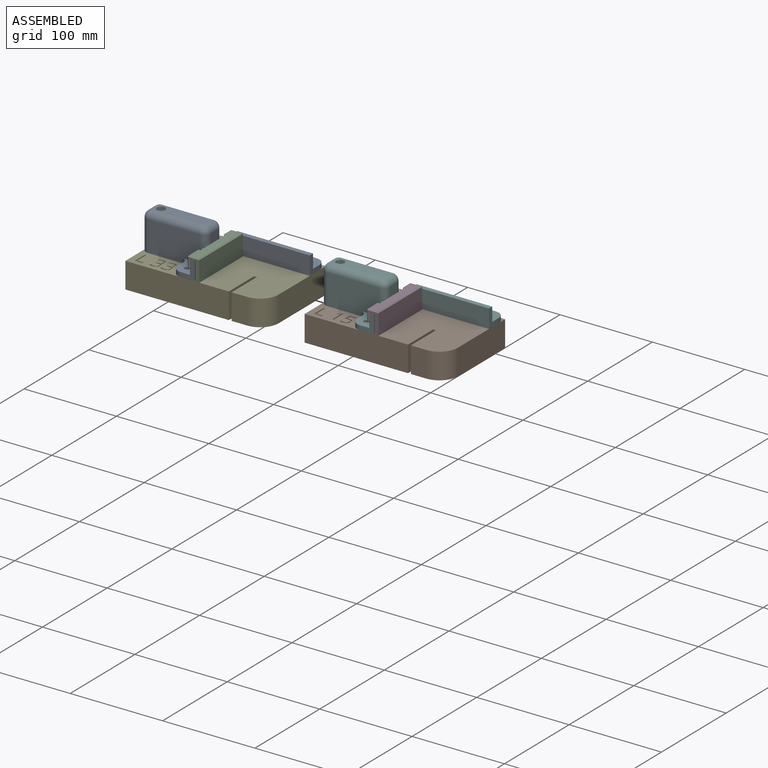
[diagram: assembled view]
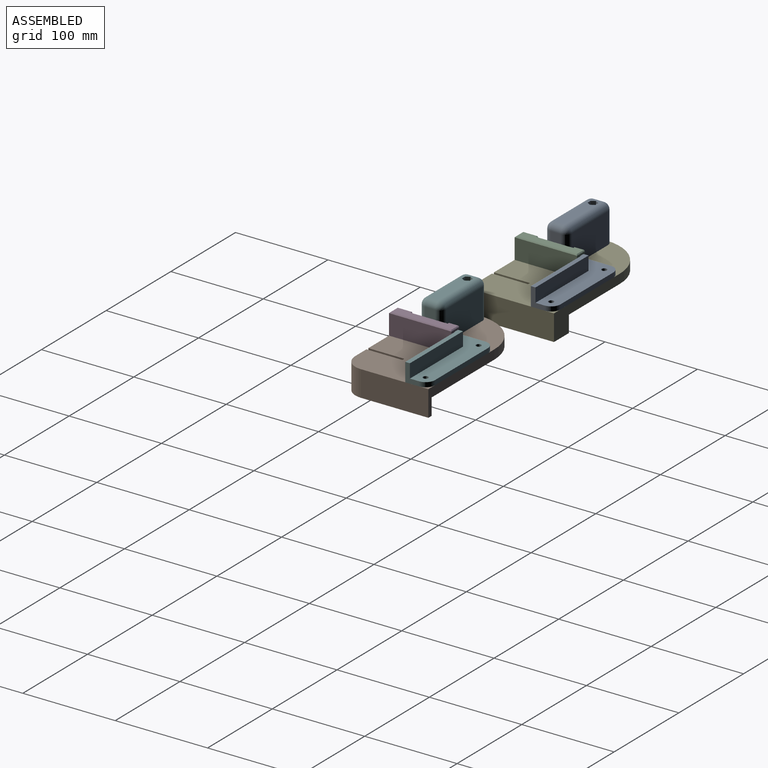
[diagram: assembled view, second angle]
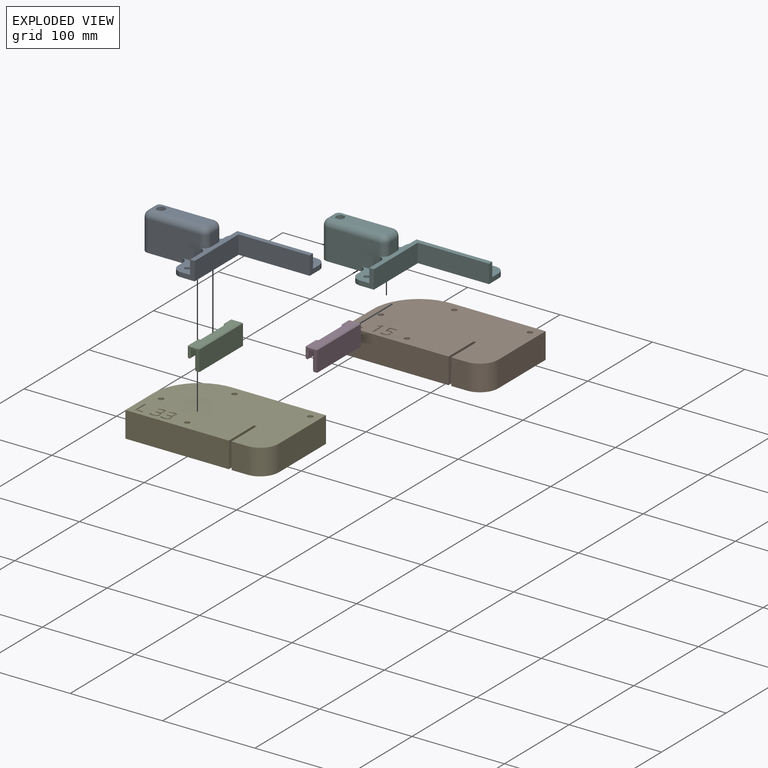
[diagram: exploded view]
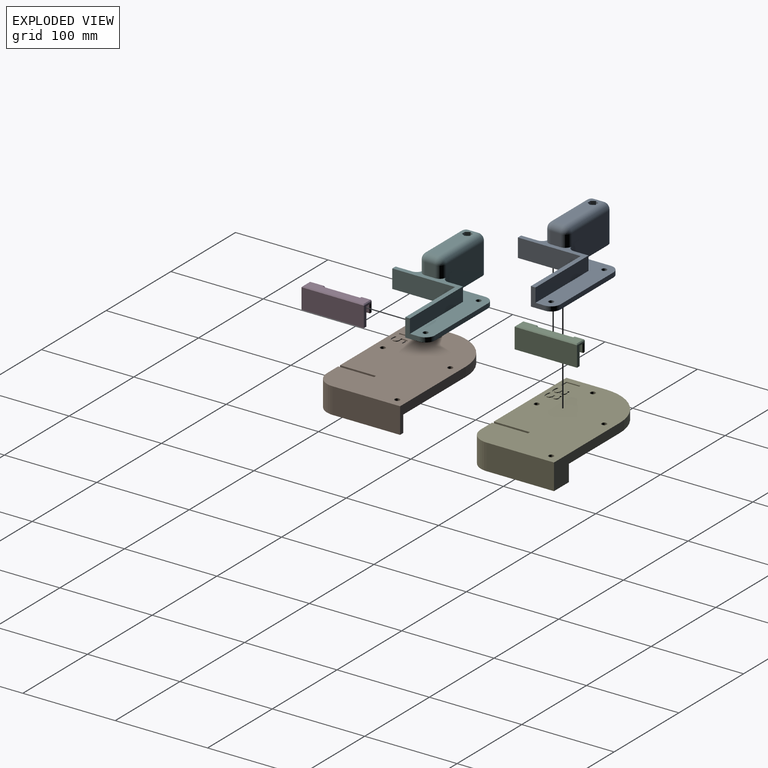
[diagram: exploded view, second angle]
ASSEMBLY  parts=6 mates=4
PART A: 49 faces, bbox 152x93x40 mm
  f0: plane 56x11mm, normal (0,0,-1), area 556.3mm2, adj f31,f33,f34,f35,f39,f40,f41,f42
  f1: plane 16x15mm, normal (1,0,0), area 240mm2, adj f2,f8,f21,f28
  f2: plane 82x15mm, normal (0,1,0), area 1230mm2, adj f1,f4,f8,f21
  f3: plane 18x15mm, normal (1,0,0), area 270mm2, adj f7,f8,f25,f29
  f4: plane 20x15mm, normal (-1,0,0), area 150mm2, adj f2,f5,f8,f9,f18,f21
  f5: plane 77x20mm, normal (0,-1,0), area 1540mm2, adj f4,f6,f8,f9
  f6: plane 68x20mm, normal (-1,0,0), area 1360mm2, adj f5,f7,f8,f9
  f7: plane 20x15mm, normal (0,-1,0), area 150mm2, adj f3,f6,f8,f9,f22,f25
  f8: plane 89x73mm, normal (0,0,-1), area 792.1mm2, adj f1,f2,f3,f4,f5,f6,f7,f10
  f9: plane 152x93mm, normal (0,0,1), area 5340.6mm2, adj f4,f5,f6,f7,f11,f12,f13,f14
  f10: plane 13x11mm, normal (-1,0,0), area 143mm2, adj f8,f33,f45,f47
  f11: plane 56x33mm, normal (0,1,0), area 1748mm2, adj f9,f21,f27,f28,f30,f31,f45
  f12: plane 56x33mm, normal (0,-1,0), area 1748mm2, adj f9,f25,f26,f29,f35,f37,f47
  f13: plane 33x11mm, normal (1,0,0), area 363mm2, adj f9,f30,f34,f37
  f14: cylinder r=2.75mm len=35mm, axis (0,0,1), area 604.8mm2, adj f9,f38
  f15: plane 26x5mm, normal (1,0,0), area 130mm2, adj f9,f16,f21,f27
  f16: cylinder r=10mm len=10mm, axis (0,0,1), area 78.5mm2, adj f9,f15,f17,f21
  f17: plane 82x5mm, normal (0,1,0), area 410mm2, adj f9,f16,f18,f21
  f18: cylinder r=10mm len=10mm, axis (0,0,1), area 78.5mm2, adj f4,f9,f17,f21
  f19: cylinder r=2.75mm len=5.5mm, axis (0,0,1), area 86.4mm2, adj f9,f21
  f20: cylinder r=2.75mm len=5.5mm, axis (0,0,1), area 86.4mm2, adj f9,f21
  f21: plane 109x43mm, normal (0,0,-1), area 2409.6mm2, adj f1,f2,f4,f11,f15,f16,f17,f18
  f22: cylinder r=10mm len=10mm, axis (0,0,1), area 78.5mm2, adj f7,f9,f23,f25
  f23: plane 8x5mm, normal (1,0,0), area 40mm2, adj f9,f22,f25,f26
  f24: cylinder r=2.75mm len=5.5mm, axis (0,0,1), area 86.4mm2, adj f9,f25
  f25: plane 27x25mm, normal (0,0,-1), area 454.8mm2, adj f3,f7,f12,f22,f23,f24,f26,f29
  f26: cylinder r=7mm len=7mm, axis (0,0,1), area 55mm2, adj f9,f12,f23,f25
  f27: cylinder r=7mm len=7mm, axis (0,0,-1), area 55mm2, adj f9,f11,f15,f21
  f28: cylinder r=7mm len=15mm, axis (0,0,-1), area 164.9mm2, adj f1,f8,f11,f21
  f29: cylinder r=7mm len=15mm, axis (0,0,1), area 164.9mm2, adj f3,f8,f12,f25
  f30: cylinder r=7mm len=33mm, axis (0,0,-1), area 362.9mm2, adj f9,f11,f13,f32
  f31: cylinder r=7mm len=56mm, axis (1,0,0), area 615.8mm2, adj f0,f11,f32,f46
  f32: sphere r=7mm, area 77mm2, adj f30,f31,f34
  f33: cylinder r=7mm len=11mm, axis (0,1,0), area 121mm2, adj f0,f10,f46,f48
  f34: cylinder r=7mm len=11mm, axis (0,-1,0), area 121mm2, adj f0,f13,f32,f36
  f35: cylinder r=7mm len=56mm, axis (-1,0,0), area 615.8mm2, adj f0,f12,f36,f48
  f36: sphere r=7mm, area 77mm2, adj f34,f35,f37
  f37: cylinder r=7mm len=33mm, axis (0,0,1), area 362.9mm2, adj f9,f12,f13,f36
  f38: plane 9.58x8.3mm, normal (0,0,-1), area 35.9mm2, adj f14,f39,f40,f41,f42,f43,f44
  f39: plane 5x4.79mm, normal (0,-1,0), area 24mm2, adj f0,f38,f40,f44
  f40: plane 5x4.15mm, normal (0.87,-0.5,0), area 24mm2, adj f0,f38,f39,f41
  f41: plane 5x4.15mm, normal (0.87,0.5,0), area 24mm2, adj f0,f38,f40,f42
  f42: plane 5x4.79mm, normal (0,1,0), area 24mm2, adj f0,f38,f41,f43
  f43: plane 5x4.15mm, normal (-0.87,0.5,0), area 24mm2, adj f0,f38,f42,f44
  f44: plane 5x4.15mm, normal (-0.87,-0.5,0), area 24mm2, adj f0,f38,f39,f43
  f45: cylinder r=7mm len=13mm, axis (0,0,-1), area 142.9mm2, adj f8,f10,f11,f46
  f46: sphere r=7mm, area 77mm2, adj f31,f33,f45
  f47: cylinder r=7mm len=13mm, axis (0,0,1), area 142.9mm2, adj f8,f10,f12,f48
  f48: sphere r=7mm, area 77mm2, adj f33,f35,f47
PART B: 66 faces, bbox 152x93x28 mm
  f0: plane 152x93mm, normal (0,0,-1), area 13184mm2, adj f1,f2,f3,f4,f5,f6,f10,f11
  f1: plane 102x28mm, normal (0,1,0), area 1110mm2, adj f0,f6,f7,f8,f10,f12
  f2: plane 39x28mm, normal (1,0,0), area 804mm2, adj f0,f3,f7,f9,f11,f12
  f3: plane 10x3mm, normal (0,-1,0), area 30mm2, adj f0,f2,f4,f7
  f4: plane 39x28mm, normal (-1,0,0), area 804mm2, adj f0,f3,f7,f13,f14,f15
  f5: plane 43x28mm, normal (1,0,0), area 844mm2, adj f0,f6,f7,f13,f14,f15
  f6: cylinder r=50mm len=50mm, axis (0,0,-1), area 785.4mm2, adj f0,f1,f5,f7
  f7: plane 147x70mm, normal (0,0,1), area 9469.9mm2, adj f1,f2,f3,f4,f5,f6,f8,f9
  f8: plane 70x18mm, normal (1,0,0), area 1260mm2, adj f1,f7,f9,f12
  f9: plane 32x18mm, normal (0,1,0), area 576mm2, adj f2,f7,f8,f12
  f10: plane 73x28mm, normal (-1,0,0), area 2044mm2, adj f0,f1,f12,f65
  f11: plane 28x17mm, normal (0,-1,0), area 476mm2, adj f0,f2,f12,f65
  f12: plane 93x37mm, normal (0,0,1), area 1115.2mm2, adj f1,f2,f8,f9,f10,f11,f65
  f13: plane 112x18mm, normal (0,1,0), area 2016mm2, adj f4,f5,f7,f15
  f14: plane 112x28mm, normal (0,-1,0), area 3136mm2, adj f0,f4,f5,f15
  f15: plane 112x23mm, normal (0,0,1), area 2497.5mm2, adj f4,f5,f13,f14,f26
  f16: cylinder r=2.75mm len=5.5mm, axis (0,0,-1), area 86.4mm2, adj f0,f27
  f17: cylinder r=2.75mm len=5.5mm, axis (0,0,-1), area 86.4mm2, adj f0,f25
  f18: cylinder r=2.75mm len=5.5mm, axis (0,0,-1), area 86.4mm2, adj f0,f23
  f19: cylinder r=2.75mm len=5.5mm, axis (0,0,-1), area 86.4mm2, adj f0,f21
  f20: cylinder r=5mm len=10mm, axis (0,0,1), area 157.1mm2, adj f7,f21
  f21: plane 10x10mm, normal (0,0,1), area 54.8mm2, adj f19,f20
  f22: cylinder r=5mm len=10mm, axis (0,0,1), area 157.1mm2, adj f7,f23
  f23: plane 10x10mm, normal (0,0,1), area 54.8mm2, adj f18,f22
  f24: cylinder r=5mm len=10mm, axis (0,0,1), area 157.1mm2, adj f7,f25
  f25: plane 10x10mm, normal (0,0,1), area 54.8mm2, adj f17,f24
  f26: cylinder r=5mm len=23mm, axis (0,0,1), area 722.6mm2, adj f15,f27
  f27: plane 10x10mm, normal (0,0,1), area 54.8mm2, adj f16,f26
  f28: extruded ~2.33x1mm, area 2.3mm2, adj f0,f29,f46,f47
  f29: extruded ~3.7x1.17mm, area 4mm2, adj f0,f28,f30,f47
  f30: extruded ~3.19x1.35mm, area 3.6mm2, adj f0,f29,f31,f47
  f31: extruded ~3.62x1.47mm, area 4mm2, adj f0,f30,f32,f47
  f32: extruded ~4.05x1.31mm, area 4.4mm2, adj f0,f31,f33,f47
  f33: extruded ~3.83x1mm, area 4mm2, adj f0,f32,f34,f47
  f34: plane 1.63x1mm, normal (-1,0,0), area 1.6mm2, adj f0,f33,f35,f47
  f35: extruded ~1.77x1mm, area 1.9mm2, adj f0,f34,f36,f47
  f36: extruded ~2.09x1mm, area 2.1mm2, adj f0,f35,f37,f47
  f37: extruded ~2.78x1mm, area 3mm2, adj f0,f36,f38,f47
  f38: extruded ~2.44x1mm, area 2.7mm2, adj f0,f37,f39,f47
  f39: extruded ~3.81x3.11mm, area 5.6mm2, adj f0,f38,f40,f47
  f40: extruded ~2.58x1mm, area 2.6mm2, adj f0,f39,f41,f47
  f41: plane 1x0.88mm, normal (-0.54,0.84,0), area 1mm2, adj f0,f40,f42,f47
  f42: plane 6.96x1mm, normal (-1,-0.08,0), area 7mm2, adj f0,f41,f43,f47
  f43: plane 7.4x1mm, normal (0,-1,0), area 7.4mm2, adj f0,f42,f44,f47
  f44: plane 1.56x1mm, normal (1,0,0), area 1.6mm2, adj f0,f43,f45,f47
  f45: plane 5.95x1mm, normal (0,1,0), area 6mm2, adj f0,f44,f46,f47
  f46: plane 4.47x1mm, normal (1,0.08,0), area 4.5mm2, adj f0,f28,f45,f47
  f47: plane 15.08x9.36mm, normal (0,0,-1), area 51.3mm2, adj f28,f29,f30,f31,f32,f33,f34,f35
  f48: plane 14.87x1mm, normal (1,0,0), area 14.9mm2, adj f0,f49,f56,f57
  f49: plane 1.65x1mm, normal (0,1,0), area 1.6mm2, adj f0,f48,f50,f57
  f50: plane 10.6x1mm, normal (-1,0,0), area 10.6mm2, adj f0,f49,f51,f57
  f51: extruded ~2.5x1mm, area 2.5mm2, adj f0,f50,f52,f57
  f52: extruded ~1x0.48mm, area 0.7mm2, adj f0,f51,f53,f57
  f53: extruded ~2.42x1.98mm, area 3.1mm2, adj f0,f52,f54,f57
  f54: plane 1.16x1mm, normal (-0.79,0.61,0), area 1.5mm2, adj f0,f53,f55,f57
  f55: plane 3.94x3.04mm, normal (-0.61,-0.79,0), area 5mm2, adj f0,f54,f56,f57
  f56: plane 1.42x1mm, normal (0,-1,0), area 1.4mm2, adj f0,f48,f55,f57
  f57: plane 14.87x5.36mm, normal (0,0,-1), area 30.3mm2, adj f48,f49,f50,f51,f52,f53,f54,f55
  f58: plane 8.29x1mm, normal (0,1,0), area 8.3mm2, adj f0,f59,f63,f64
  f59: plane 14.87x1mm, normal (-1,0,0), area 14.9mm2, adj f0,f58,f60,f64
  f60: plane 1.73x1mm, normal (0,-1,0), area 1.7mm2, adj f0,f59,f61,f64
  f61: plane 13.31x1mm, normal (1,0,0), area 13.3mm2, adj f0,f60,f62,f64
  f62: plane 6.56x1mm, normal (0,-1,0), area 6.6mm2, adj f0,f61,f63,f64
  f63: plane 1.57x1mm, normal (1,0,0), area 1.6mm2, adj f0,f58,f62,f64
  f64: plane 14.87x8.29mm, normal (0,0,-1), area 36mm2, adj f58,f59,f60,f61,f62,f63
  f65: cylinder r=20mm len=28mm, axis (0,0,-1), area 879.6mm2, adj f0,f10,f11,f12
PART C: 54 faces, bbox 13x67.5x23 mm
  f0: plane 15x11mm, normal (-1,0,0), area 165mm2, adj f35,f36,f44,f45
  f1: plane 10x9mm, normal (1,0,0), area 90mm2, adj f9,f16,f21,f22
  f2: plane 10x1mm, normal (0,0,1), area 10mm2, adj f20,f21,f32,f33
  f3: plane 65.5x11mm, normal (0,0,-1), area 639.5mm2, adj f15,f30,f37,f42,f45,f48,f49,f50
  f4: plane 15x1mm, normal (0,0,1), area 15mm2, adj f24,f25,f34,f35
  f5: plane 11x10mm, normal (-1,0,0), area 110mm2, adj f31,f32,f42,f43
  f6: plane 67.5x22mm, normal (1,0,0), area 1485mm2, adj f7,f11,f12,f50
  f7: plane 67.5x4mm, normal (0,0,1), area 270mm2, adj f6,f11,f12,f53
  f8: plane 65.5x19mm, normal (-1,0,0), area 1244.5mm2, adj f9,f51,f52,f53
  f9: plane 67.5x7mm, normal (0,0,1), area 340.5mm2, adj f1,f8,f10,f11,f12,f13,f14,f15
  f10: plane 15x9mm, normal (1,0,0), area 135mm2, adj f9,f17,f23,f24
  f11: plane 22x12mm, normal (0,-1,0), area 113mm2, adj f6,f7,f9,f22,f33,f43,f48,f51
  f12: plane 22x12mm, normal (0,1,0), area 113mm2, adj f6,f7,f9,f23,f34,f44,f49,f52
  f13: plane 11x2mm, normal (0,1,0), area 13mm2, adj f9,f15,f16,f20,f30,f31
  f14: plane 11x2mm, normal (0,-1,0), area 13mm2, adj f9,f15,f17,f25,f36,f37
  f15: plane 40.5x3mm, normal (-1,0,0), area 116.5mm2, adj f3,f9,f13,f14,f30,f37
  f16: plane 9x1mm, normal (0.71,0.71,0), area 12.7mm2, adj f1,f9,f13,f18
  f17: plane 9x1mm, normal (0.71,-0.71,0), area 12.7mm2, adj f9,f10,f14,f19
  f18: plane 1x1mm, normal (0.58,0.58,0.58), area 0.9mm2, adj f16,f20,f21
  f19: plane 1x1mm, normal (0.58,-0.58,0.58), area 0.9mm2, adj f17,f24,f25
  f20: plane 1x1mm, normal (0,0.71,0.71), area 1.4mm2, adj f2,f13,f18,f26
  f21: plane 10x1mm, normal (0.71,0,0.71), area 14.1mm2, adj f1,f2,f18,f27
  f22: plane 9x1mm, normal (0.71,-0.71,0), area 12.7mm2, adj f1,f9,f11,f27
  f23: plane 9x1mm, normal (0.71,0.71,0), area 12.7mm2, adj f9,f10,f12,f28
  f24: plane 15x1mm, normal (0.71,0,0.71), area 21.2mm2, adj f4,f10,f19,f28
  f25: plane 1x1mm, normal (0,-0.71,0.71), area 1.4mm2, adj f4,f14,f19,f29
  f26: plane 1x1mm, normal (-0.58,0.58,0.58), area 0.9mm2, adj f20,f31,f32
  f27: plane 1x1mm, normal (0.58,-0.58,0.58), area 0.9mm2, adj f21,f22,f33
  f28: plane 1x1mm, normal (0.58,0.58,0.58), area 0.9mm2, adj f23,f24,f34
  f29: plane 1x1mm, normal (-0.58,-0.58,0.58), area 0.9mm2, adj f25,f35,f36
  f30: plane 2x1mm, normal (0,0.71,-0.71), area 2.8mm2, adj f3,f13,f15,f38
  f31: plane 11x1mm, normal (-0.71,0.71,0), area 15.6mm2, adj f5,f13,f26,f38
  f32: plane 10x1mm, normal (-0.71,0,0.71), area 14.1mm2, adj f2,f5,f26,f39
  f33: plane 1x1mm, normal (0,-0.71,0.71), area 1.4mm2, adj f2,f11,f27,f39
  f34: plane 1x1mm, normal (0,0.71,0.71), area 1.4mm2, adj f4,f12,f28,f40
  f35: plane 15x1mm, normal (-0.71,0,0.71), area 21.2mm2, adj f0,f4,f29,f40
  f36: plane 11x1mm, normal (-0.71,-0.71,0), area 15.6mm2, adj f0,f14,f29,f41
  f37: plane 2x1mm, normal (0,-0.71,-0.71), area 2.8mm2, adj f3,f14,f15,f41
  f38: plane 1x1mm, normal (-0.58,0.58,-0.58), area 0.9mm2, adj f30,f31,f42
  f39: plane 1x1mm, normal (-0.58,-0.58,0.58), area 0.9mm2, adj f32,f33,f43
  f40: plane 1x1mm, normal (-0.58,0.58,0.58), area 0.9mm2, adj f34,f35,f44
  f41: plane 1x1mm, normal (-0.58,-0.58,-0.58), area 0.9mm2, adj f36,f37,f45
  f42: plane 10x1mm, normal (-0.71,0,-0.71), area 14.1mm2, adj f3,f5,f38,f46
  f43: plane 11x1mm, normal (-0.71,-0.71,0), area 15.6mm2, adj f5,f11,f39,f46
  f44: plane 11x1mm, normal (-0.71,0.71,0), area 15.6mm2, adj f0,f12,f40,f47
  f45: plane 15x1mm, normal (-0.71,0,-0.71), area 21.2mm2, adj f0,f3,f41,f47
  f46: plane 1x1mm, normal (-0.58,-0.58,-0.58), area 0.9mm2, adj f42,f43,f48
  f47: plane 1x1mm, normal (-0.58,0.58,-0.58), area 0.9mm2, adj f44,f45,f49
  f48: plane 12x1mm, normal (0,-0.71,-0.71), area 16.3mm2, adj f3,f11,f46,f50
  f49: plane 12x1mm, normal (0,0.71,-0.71), area 16.3mm2, adj f3,f12,f47,f50
  f50: plane 67.5x1mm, normal (0.71,0,-0.71), area 94mm2, adj f3,f6,f48,f49
  f51: plane 20x1mm, normal (-0.71,-0.71,0), area 27.6mm2, adj f8,f9,f11,f53
  f52: plane 20x1mm, normal (-0.71,0.71,0), area 27.6mm2, adj f8,f9,f12,f53
  f53: plane 67.5x1mm, normal (-0.71,0,0.71), area 94mm2, adj f7,f8,f51,f52
PART D: same geometry as C
PART E: 94 faces, bbox 152x93x28 mm
  f0: plane 152x93mm, normal (0,0,-1), area 13162.9mm2, adj f1,f2,f3,f4,f5,f6,f9,f13
  f1: plane 102x28mm, normal (0,1,0), area 1434mm2, adj f0,f6,f7,f11,f14,f15
  f2: plane 39x28mm, normal (1,0,0), area 480mm2, adj f0,f3,f7,f12,f13,f15
  f3: plane 10x3mm, normal (0,-1,0), area 30mm2, adj f0,f2,f4,f7
  f4: plane 39x28mm, normal (-1,0,0), area 480mm2, adj f0,f3,f7,f8,f9,f10
  f5: plane 43x28mm, normal (1,0,0), area 520mm2, adj f0,f6,f7,f8,f9,f10
  f6: cylinder r=50mm len=50mm, axis (0,0,-1), area 785.4mm2, adj f0,f1,f5,f7
  f7: plane 129x88mm, normal (0,0,1), area 10477.9mm2, adj f1,f2,f3,f4,f5,f6,f8,f11
  f8: plane 112x18mm, normal (0,1,0), area 2016mm2, adj f4,f5,f7,f10
  f9: plane 112x28mm, normal (0,-1,0), area 3136mm2, adj f0,f4,f5,f10
  f10: plane 112x5mm, normal (0,0,1), area 560mm2, adj f4,f5,f8,f9
  f11: plane 88x18mm, normal (1,0,0), area 1584mm2, adj f1,f7,f12,f15
  f12: plane 18x14mm, normal (0,1,0), area 252mm2, adj f2,f7,f11,f15
  f13: plane 28x17mm, normal (0,-1,0), area 476mm2, adj f0,f2,f15,f93
  f14: plane 73x28mm, normal (-1,0,0), area 2044mm2, adj f0,f1,f15,f93
  f15: plane 93x37mm, normal (0,0,1), area 2044.6mm2, adj f1,f2,f11,f12,f13,f14,f26,f93
  f16: cylinder r=2.75mm len=5.5mm, axis (0,0,-1), area 86.4mm2, adj f0,f27
  f17: cylinder r=2.75mm len=5.5mm, axis (0,0,-1), area 86.4mm2, adj f0,f25
  f18: cylinder r=2.75mm len=5.5mm, axis (0,0,-1), area 86.4mm2, adj f0,f23
  f19: cylinder r=2.75mm len=5.5mm, axis (0,0,-1), area 86.4mm2, adj f0,f21
  f20: cylinder r=5mm len=10mm, axis (0,0,1), area 157.1mm2, adj f7,f21
  f21: plane 10x10mm, normal (0,0,1), area 54.8mm2, adj f19,f20
  f22: cylinder r=5mm len=10mm, axis (0,0,1), area 157.1mm2, adj f7,f23
  f23: plane 10x10mm, normal (0,0,1), area 54.8mm2, adj f18,f22
  f24: cylinder r=5mm len=10mm, axis (0,0,1), area 157.1mm2, adj f7,f25
  f25: plane 10x10mm, normal (0,0,1), area 54.8mm2, adj f17,f24
  f26: cylinder r=5mm len=23mm, axis (0,0,1), area 722.6mm2, adj f15,f27
  f27: plane 10x10mm, normal (0,0,1), area 54.8mm2, adj f16,f26
  f28: extruded ~2.72x1.2mm, area 3.1mm2, adj f0,f29,f55,f56
  f29: extruded ~2.33x1mm, area 2.5mm2, adj f0,f28,f30,f56
  f30: extruded ~2.26x1.21mm, area 2.6mm2, adj f0,f29,f31,f56
  f31: plane 1x0.08mm, normal (1,0,0), area 0.1mm2, adj f0,f30,f32,f56
  f32: extruded ~2.65x1.14mm, area 2.9mm2, adj f0,f31,f33,f56
  f33: extruded ~2.4x1mm, area 2.6mm2, adj f0,f32,f34,f56
  f34: extruded ~3.27x1.47mm, area 3.7mm2, adj f0,f33,f35,f56
  f35: extruded ~4.19x1.15mm, area 4.4mm2, adj f0,f34,f36,f56
  f36: extruded ~2.16x1mm, area 2.2mm2, adj f0,f35,f37,f56
  f37: extruded ~1.91x1mm, area 2mm2, adj f0,f36,f38,f56
  f38: plane 1.61x1mm, normal (-1,0,0), area 1.6mm2, adj f0,f37,f39,f56
  f39: extruded ~2.06x1mm, area 2.2mm2, adj f0,f38,f40,f56
  f40: extruded ~2.07x1mm, area 2.1mm2, adj f0,f39,f41,f56
  f41: extruded ~3.85x3.02mm, area 5.6mm2, adj f0,f40,f42,f56
  f42: extruded ~4.25x2.71mm, area 5.7mm2, adj f0,f41,f43,f56
  f43: plane 1.47x1mm, normal (0,1,0), area 1.5mm2, adj f0,f42,f44,f56
  f44: plane 1.45x1mm, normal (-1,0,0), area 1.5mm2, adj f0,f43,f45,f56
  f45: plane 1.48x1mm, normal (0,-1,0), area 1.5mm2, adj f0,f44,f46,f56
  f46: extruded ~2.76x1mm, area 2.9mm2, adj f0,f45,f47,f56
  f47: extruded ~2.13x1.02mm, area 2.5mm2, adj f0,f46,f48,f56
  f48: extruded ~1.71x1mm, area 1.9mm2, adj f0,f47,f49,f56
  f49: extruded ~2.03x1mm, area 2.2mm2, adj f0,f48,f50,f56
  f50: extruded ~1.84x1mm, area 1.9mm2, adj f0,f49,f51,f56
  f51: extruded ~1.97x1mm, area 2.2mm2, adj f0,f50,f52,f56
  f52: plane 1.14x1mm, normal (-0.8,0.6,0), area 1.4mm2, adj f0,f51,f53,f56
  f53: extruded ~2.11x1.13mm, area 2.4mm2, adj f0,f52,f54,f56
  f54: extruded ~2.52x1mm, area 2.6mm2, adj f0,f53,f55,f56
  f55: extruded ~3.37x1mm, area 3.6mm2, adj f0,f28,f54,f56
  f56: plane 15.29x9.73mm, normal (0,0,-1), area 51.4mm2, adj f28,f29,f30,f31,f32,f33,f34,f35
  f57: extruded ~2.72x1.2mm, area 3.1mm2, adj f0,f58,f84,f85
  f58: extruded ~2.33x1mm, area 2.5mm2, adj f0,f57,f59,f85
  f59: extruded ~2.26x1.21mm, area 2.6mm2, adj f0,f58,f60,f85
  f60: plane 1x0.08mm, normal (1,0,0), area 0.1mm2, adj f0,f59,f61,f85
  f61: extruded ~2.65x1.14mm, area 2.9mm2, adj f0,f60,f62,f85
  f62: extruded ~2.4x1mm, area 2.6mm2, adj f0,f61,f63,f85
  f63: extruded ~3.27x1.47mm, area 3.7mm2, adj f0,f62,f64,f85
  f64: extruded ~4.19x1.15mm, area 4.4mm2, adj f0,f63,f65,f85
  f65: extruded ~2.16x1mm, area 2.2mm2, adj f0,f64,f66,f85
  f66: extruded ~1.91x1mm, area 2mm2, adj f0,f65,f67,f85
  f67: plane 1.61x1mm, normal (-1,0,0), area 1.6mm2, adj f0,f66,f68,f85
  f68: extruded ~2.06x1mm, area 2.2mm2, adj f0,f67,f69,f85
  f69: extruded ~2.07x1mm, area 2.1mm2, adj f0,f68,f70,f85
  f70: extruded ~3.85x3.02mm, area 5.6mm2, adj f0,f69,f71,f85
  f71: extruded ~4.25x2.71mm, area 5.7mm2, adj f0,f70,f72,f85
  f72: plane 1.47x1mm, normal (0,1,0), area 1.5mm2, adj f0,f71,f73,f85
  f73: plane 1.45x1mm, normal (-1,0,0), area 1.5mm2, adj f0,f72,f74,f85
  f74: plane 1.48x1mm, normal (0,-1,0), area 1.5mm2, adj f0,f73,f75,f85
  f75: extruded ~2.76x1mm, area 2.9mm2, adj f0,f74,f76,f85
  f76: extruded ~2.13x1.02mm, area 2.5mm2, adj f0,f75,f77,f85
  f77: extruded ~1.71x1mm, area 1.9mm2, adj f0,f76,f78,f85
  f78: extruded ~2.03x1mm, area 2.2mm2, adj f0,f77,f79,f85
  f79: extruded ~1.84x1mm, area 1.9mm2, adj f0,f78,f80,f85
  f80: extruded ~1.97x1mm, area 2.2mm2, adj f0,f79,f81,f85
  f81: plane 1.14x1mm, normal (-0.8,0.6,0), area 1.4mm2, adj f0,f80,f82,f85
  f82: extruded ~2.11x1.13mm, area 2.4mm2, adj f0,f81,f83,f85
  f83: extruded ~2.52x1mm, area 2.6mm2, adj f0,f82,f84,f85
  f84: extruded ~3.37x1mm, area 3.6mm2, adj f0,f57,f83,f85
  f85: plane 15.29x9.73mm, normal (0,0,-1), area 51.4mm2, adj f57,f58,f59,f60,f61,f62,f63,f64
  f86: plane 8.29x1mm, normal (0,1,0), area 8.3mm2, adj f0,f87,f91,f92
  f87: plane 14.87x1mm, normal (-1,0,0), area 14.9mm2, adj f0,f86,f88,f92
  f88: plane 1.73x1mm, normal (0,-1,0), area 1.7mm2, adj f0,f87,f89,f92
  f89: plane 13.31x1mm, normal (1,0,0), area 13.3mm2, adj f0,f88,f90,f92
  f90: plane 6.56x1mm, normal (0,-1,0), area 6.6mm2, adj f0,f89,f91,f92
  f91: plane 1.57x1mm, normal (1,0,0), area 1.6mm2, adj f0,f86,f90,f92
  f92: plane 14.87x8.29mm, normal (0,0,-1), area 36mm2, adj f86,f87,f88,f89,f90,f91
  f93: cylinder r=20mm len=28mm, axis (0,0,-1), area 879.6mm2, adj f0,f13,f14,f15
PART F: same geometry as A
PLACE A rot(axis=(0,1,0),180deg) t=(174.21,56.37,-16.89)mm
PLACE B rot(axis=(0,1,0),180deg) t=(386.23,74.31,-16.92)mm fixed
PLACE C rot(axis=(-1,0,0),180deg) t=(107.21,56.37,6.11)mm
PLACE D rot(axis=(-1,0,0),180deg) t=(301.23,56.31,6.08)mm
PLACE E rot(axis=(0,1,0),180deg) t=(174.21,56.37,-16.89)mm fixed
PLACE F rot(axis=(0,1,0),180deg) t=(368.23,56.31,-16.92)mm
MATE fastened E.f24 <-> A.f14  axis (0,0,1) through (52.71,93.87,-16.89)mm
MATE fastened B.f17 <-> F.f14  axis (0,0,1) through (246.73,93.81,-16.92)mm
MATE fastened C.f9 <-> A.f8  axis (0,0,-1) through (112.71,56.37,3.11)mm
MATE fastened D.f9 <-> F.f8  axis (0,0,-1) through (306.73,56.31,3.08)mm
